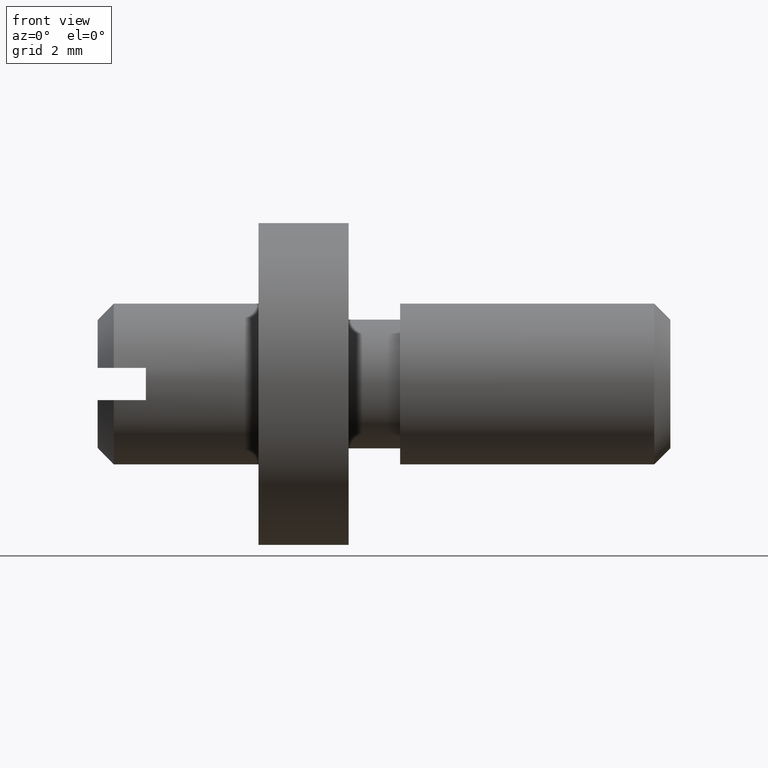
[diagram: clean part render]
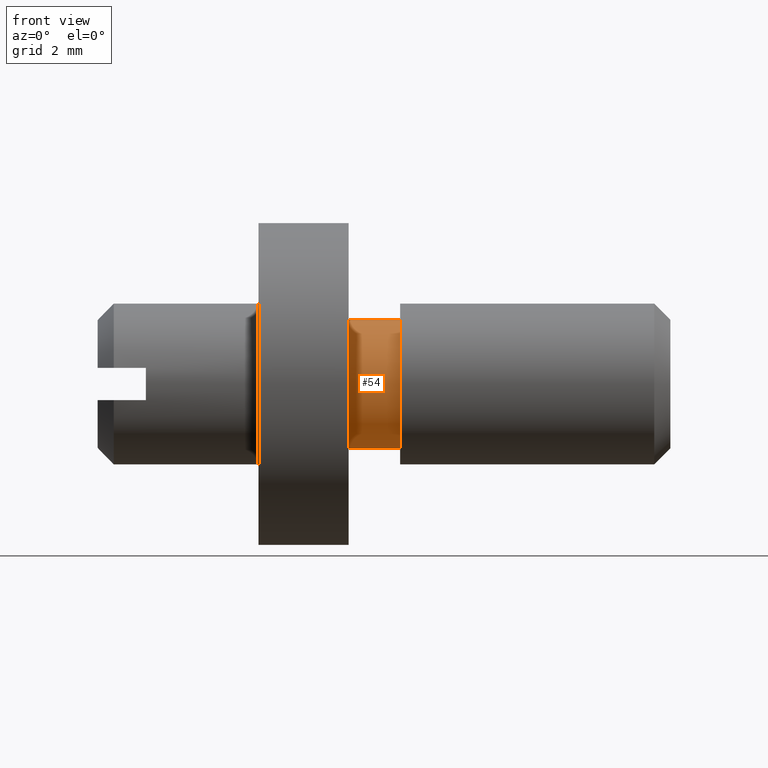
[diagram: same view with one face highlighted and labeled with its STEP entity id]
A machine part, front view. The second image highlights one B-rep face of the part: STEP entity #54.
In plain terms, the highlighted cylindrical surface (partial cylindrical patch) has radius 2 mm, axis along (-1, -0, 0).
Its self-contained STEP definition (entity closure, byte-faithful):
#54=ADVANCED_FACE('',(#205),#204,.T.);
#204=CYLINDRICAL_SURFACE('',#362,2.00000000000E+00);
#205=FACE_OUTER_BOUND('',#363,.T.);
#359=CARTESIAN_POINT('',(-9.19999980927E+00,0.00000000000E+00,0.00000000000E+00));
#360=DIRECTION('',(-1.00000000000E+00,-0.00000000000E+00,0.00000000000E+00));
#361=DIRECTION('',(0.00000000000E+00,-0.00000000000E+00,1.00000000000E+00));
#362=AXIS2_PLACEMENT_3D('',#359,#360,#361);
#363=EDGE_LOOP('',(#462,#463,#464,#465));
#462=ORIENTED_EDGE('',*,*,#518,.T.);
#463=ORIENTED_EDGE('',*,*,#534,.T.);
#464=ORIENTED_EDGE('',*,*,#522,.F.);
#465=ORIENTED_EDGE('',*,*,#535,.F.);
#518=EDGE_CURVE('',#681,#682,#683,.T.);
#522=EDGE_CURVE('',#709,#710,#711,.T.);
#534=EDGE_CURVE('',#682,#710,#788,.T.);
#535=EDGE_CURVE('',#681,#709,#794,.T.);
#681=VERTEX_POINT('',#939);
#682=VERTEX_POINT('',#940);
#683=CIRCLE('',#944,2.00000000000E+00);
#709=VERTEX_POINT('',#959);
#710=VERTEX_POINT('',#960);
#711=CIRCLE('',#964,2.00000000000E+00);
#788=(BOUNDED_CURVE() B_SPLINE_CURVE(1,(#1010,#1011),.UNSPECIFIED.,.F.,.F.) B_SPLINE_CURVE_WITH_KNOTS((2,2),(8.33333134656E-02,9.16666653270E-01),.UNSPECIFIED.) CURVE() GEOMETRIC_REPRESENTATION_ITEM() RATIONAL_B_SPLINE_CURVE((1.00000000000E+00,1.00000000000E+00)) REPRESENTATION_ITEM('') );
#794=(BOUNDED_CURVE() B_SPLINE_CURVE(1,(#1012,#1013),.UNSPECIFIED.,.F.,.F.) B_SPLINE_CURVE_WITH_KNOTS((2,2),(8.33333333333E-02,9.16666666667E-01),.UNSPECIFIED.) CURVE() GEOMETRIC_REPRESENTATION_ITEM() RATIONAL_B_SPLINE_CURVE((7.50000000000E-01,7.50000000000E-01)) REPRESENTATION_ITEM('') );
#939=CARTESIAN_POINT('',(-8.40000000000E+00,7.40148683083E-17,-2.00000000000E+00));
#940=CARTESIAN_POINT('',(-8.40000000000E+00,-4.66965875689E-16,2.00000000000E+00));
#941=CARTESIAN_POINT('',(-8.40000000000E+00,0.00000000000E+00,0.00000000000E+00));
#942=DIRECTION('',(-1.00000000000E+00,0.00000000000E+00,0.00000000000E+00));
#943=DIRECTION('',(-0.00000000000E+00,-1.11022302463E-16,1.00000000000E+00));
#944=AXIS2_PLACEMENT_3D('',#941,#942,#943);
#959=CARTESIAN_POINT('',(-1.00000000000E+01,2.44921270764E-16,-2.00000000000E+00));
#960=CARTESIAN_POINT('',(-1.00000000000E+01,7.40148683083E-17,2.00000000000E+00));
#961=CARTESIAN_POINT('',(-1.00000000000E+01,0.00000000000E+00,0.00000000000E+00));
#962=DIRECTION('',(-1.00000000000E+00,0.00000000000E+00,0.00000000000E+00));
#963=DIRECTION('',(-0.00000000000E+00,-0.00000000000E+00,-1.00000000000E+00));
#964=AXIS2_PLACEMENT_3D('',#961,#962,#963);
#1010=CARTESIAN_POINT('',(-8.39999996185E+00,0.00000000000E+00,2.00000000000E+00));
#1011=CARTESIAN_POINT('',(-9.99999997428E+00,0.00000000000E+00,2.00000000000E+00));
#1012=CARTESIAN_POINT('',(-8.40000000000E+00,-7.40148683083E-17,-2.00000000000E+00));
#1013=CARTESIAN_POINT('',(-1.00000000000E+01,-7.40148683083E-17,-2.00000000000E+00));